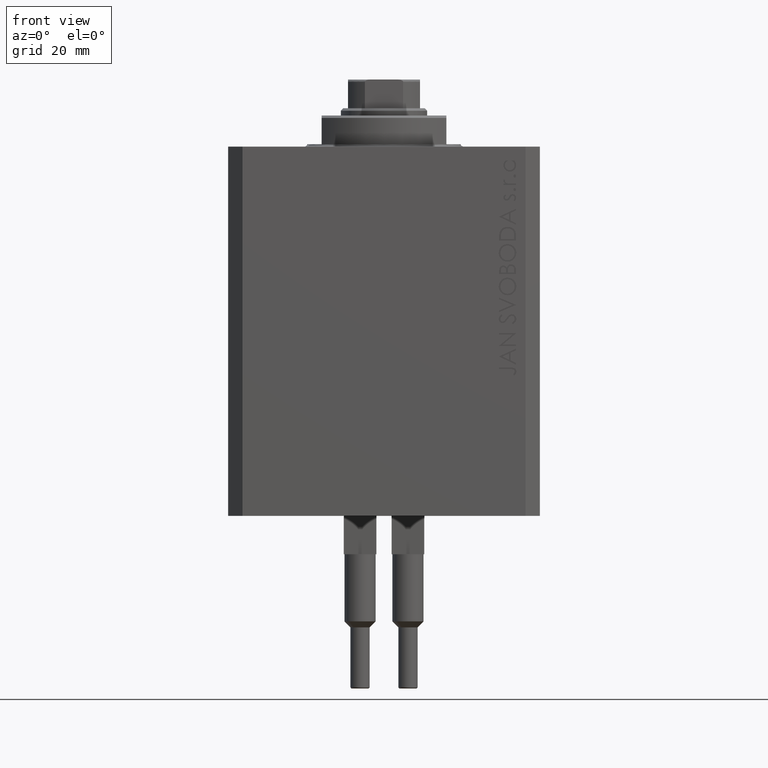
[diagram: clean part render]
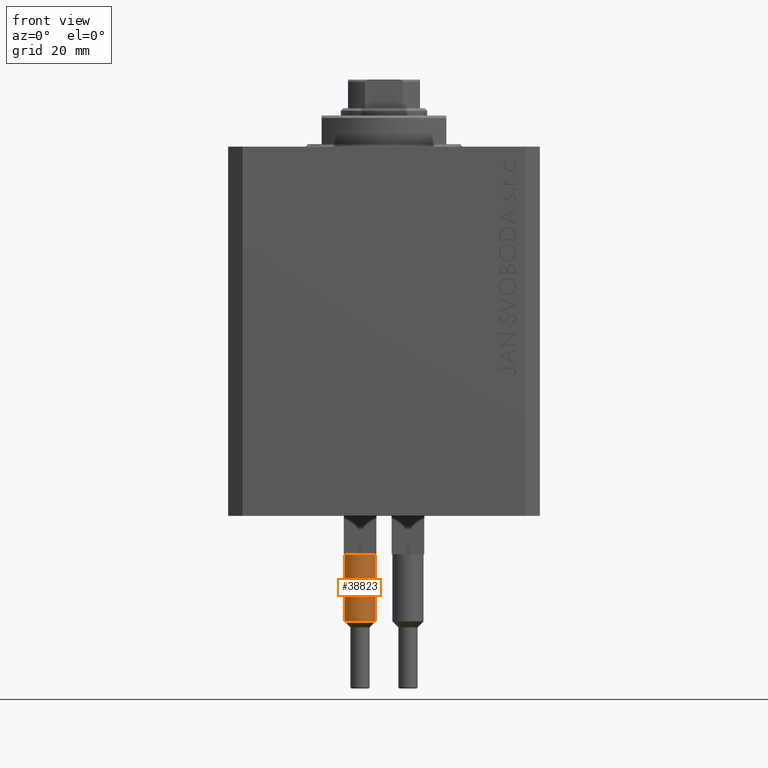
[diagram: same view with one face highlighted and labeled with its STEP entity id]
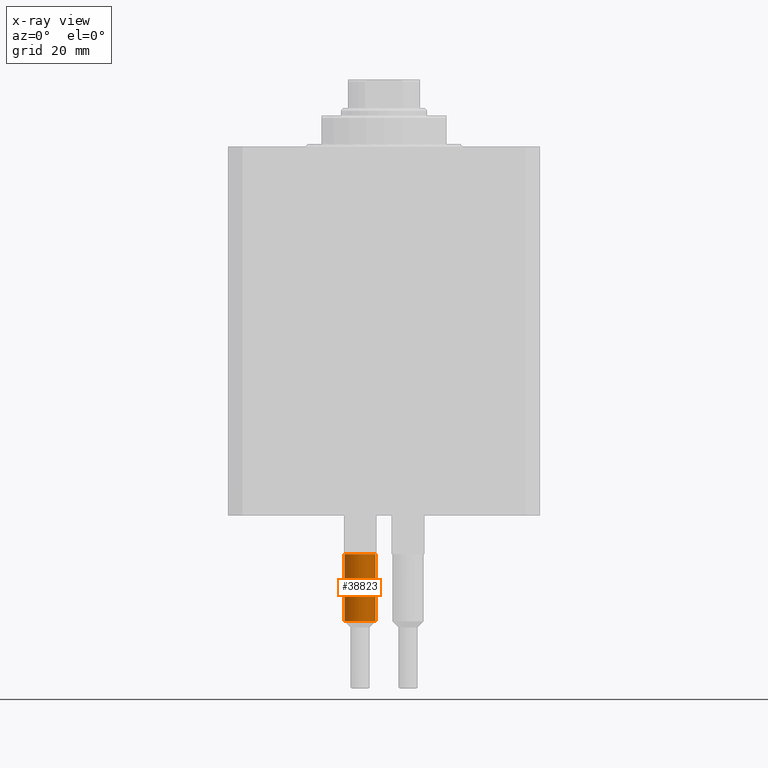
[diagram: x-ray of the same camera — body ghosted, the highlighted face saturated]
A machine part, front view. The second image highlights one B-rep face of the part: STEP entity #38823.
The next image is the same camera in x-ray: the body ghosted, the highlighted face saturated — about 0% of this face is hidden behind the body in this view.
In plain terms, the highlighted cylindrical surface (edge-blend (fillet) strip) has radius 3.25 mm, axis along (-0, -0, 1).
Its self-contained STEP definition (entity closure, byte-faithful):
#175 = VECTOR ( 'NONE', #25890, 1000.000000000000000 ) ;
#653 = ORIENTED_EDGE ( 'NONE', *, *, #3197, .T. ) ;
#1114 = EDGE_CURVE ( 'NONE', #43494, #15121, #32935, .T. ) ;
#1390 = EDGE_CURVE ( 'NONE', #2675, #15121, #20384, .T. ) ;
#1750 = CIRCLE ( 'NONE', #27332, 3.250000000000000444 ) ;
#2675 = VERTEX_POINT ( 'NONE', #28651 ) ;
#3038 = ORIENTED_EDGE ( 'NONE', *, *, #1114, .F. ) ;
#3197 = EDGE_CURVE ( 'NONE', #46795, #3873, #5646, .T. ) ;
#3873 = VERTEX_POINT ( 'NONE', #39500 ) ;
#4757 = CARTESIAN_POINT ( 'NONE',  ( 0.000000000000000000, 0.000000000000000000, 40.00000000000000000 ) ) ;
#4895 = EDGE_CURVE ( 'NONE', #16817, #2675, #1750, .T. ) ;
#5646 = LINE ( 'NONE', #45044, #39696 ) ;
#7980 = DIRECTION ( 'NONE',  ( -0.000000000000000000, -0.000000000000000000, -1.000000000000000000 ) ) ;
#9593 = ORIENTED_EDGE ( 'NONE', *, *, #4895, .T. ) ;
#11806 = DIRECTION ( 'NONE',  ( 0.000000000000000000, 0.000000000000000000, -1.000000000000000000 ) ) ;
#12446 = CARTESIAN_POINT ( 'NONE',  ( -3.250000000000000444, 0.000000000000000000, 40.00000000000000000 ) ) ;
#12704 = AXIS2_PLACEMENT_3D ( 'NONE', #45076, #11806, #40708 ) ;
#14275 = CARTESIAN_POINT ( 'NONE',  ( 2.883140648667699146, 1.500000000000000000, 40.00000000000000000 ) ) ;
#14656 = CARTESIAN_POINT ( 'NONE',  ( 0.000000000000000000, 0.000000000000000000, 40.00000000000000000 ) ) ;
#15121 = VERTEX_POINT ( 'NONE', #12446 ) ;
#15285 = CARTESIAN_POINT ( 'NONE',  ( 3.250000000000000444, 3.980102097228898231E-16, 53.99999999999998579 ) ) ;
#16817 = VERTEX_POINT ( 'NONE', #14275 ) ;
#18346 = DIRECTION ( 'NONE',  ( 0.000000000000000000, 0.000000000000000000, 1.000000000000000000 ) ) ;
#19388 = DIRECTION ( 'NONE',  ( -1.000000000000000000, 0.000000000000000000, 0.000000000000000000 ) ) ;
#19418 = ORIENTED_EDGE ( 'NONE', *, *, #44852, .T. ) ;
#20384 = CIRCLE ( 'NONE', #42046, 3.250000000000000444 ) ;
#21416 = EDGE_LOOP ( 'NONE', ( #19418, #653, #43921, #9593, #30334, #3038 ) ) ;
#22322 = CARTESIAN_POINT ( 'NONE',  ( 0.000000000000000000, 0.000000000000000000, 56.00000000000000000 ) ) ;
#22724 = AXIS2_PLACEMENT_3D ( 'NONE', #26321, #18346, #47942 ) ;
#23045 = CYLINDRICAL_SURFACE ( 'NONE', #31099, 3.250000000000000444 ) ;
#25890 = DIRECTION ( 'NONE',  ( -0.000000000000000000, -0.000000000000000000, -1.000000000000000000 ) ) ;
#26294 = DIRECTION ( 'NONE',  ( 0.000000000000000000, 0.000000000000000000, 1.000000000000000000 ) ) ;
#26321 = CARTESIAN_POINT ( 'NONE',  ( 0.000000000000000000, 0.000000000000000000, 40.00000000000000000 ) ) ;
#26861 = DIRECTION ( 'NONE',  ( 0.000000000000000000, 0.000000000000000000, 1.000000000000000000 ) ) ;
#27332 = AXIS2_PLACEMENT_3D ( 'NONE', #4757, #26861, #34132 ) ;
#28651 = CARTESIAN_POINT ( 'NONE',  ( -2.883140648667699146, 1.500000000000000000, 40.00000000000000000 ) ) ;
#29718 = CIRCLE ( 'NONE', #22724, 3.250000000000000444 ) ;
#30334 = ORIENTED_EDGE ( 'NONE', *, *, #1390, .T. ) ;
#31099 = AXIS2_PLACEMENT_3D ( 'NONE', #22322, #7980, #19388 ) ;
#32935 = LINE ( 'NONE', #40679, #175 ) ;
#33875 = DIRECTION ( 'NONE',  ( -0.000000000000000000, -0.000000000000000000, -1.000000000000000000 ) ) ;
#34132 = DIRECTION ( 'NONE',  ( 1.000000000000000000, 0.000000000000000000, 0.000000000000000000 ) ) ;
#34411 = CIRCLE ( 'NONE', #12704, 3.250000000000000444 ) ;
#37210 = DIRECTION ( 'NONE',  ( 1.000000000000000000, 0.000000000000000000, 0.000000000000000000 ) ) ;
#38823 = ADVANCED_FACE ( 'NONE', ( #45122 ), #23045, .T. ) ;
#39500 = CARTESIAN_POINT ( 'NONE',  ( 3.250000000000000444, 3.980102097228898231E-16, 40.00000000000000000 ) ) ;
#39696 = VECTOR ( 'NONE', #33875, 1000.000000000000000 ) ;
#40679 = CARTESIAN_POINT ( 'NONE',  ( -3.250000000000000444, 0.000000000000000000, 56.00000000000000000 ) ) ;
#40708 = DIRECTION ( 'NONE',  ( 1.000000000000000000, 0.000000000000000000, 0.000000000000000000 ) ) ;
#42046 = AXIS2_PLACEMENT_3D ( 'NONE', #14656, #26294, #37210 ) ;
#43494 = VERTEX_POINT ( 'NONE', #47875 ) ;
#43921 = ORIENTED_EDGE ( 'NONE', *, *, #44198, .T. ) ;
#44198 = EDGE_CURVE ( 'NONE', #3873, #16817, #29718, .T. ) ;
#44852 = EDGE_CURVE ( 'NONE', #43494, #46795, #34411, .T. ) ;
#45044 = CARTESIAN_POINT ( 'NONE',  ( 3.250000000000000444, 3.980102097228898231E-16, 56.00000000000000000 ) ) ;
#45076 = CARTESIAN_POINT ( 'NONE',  ( 0.000000000000000000, 0.000000000000000000, 53.99999999999998579 ) ) ;
#45122 = FACE_OUTER_BOUND ( 'NONE', #21416, .T. ) ;
#46795 = VERTEX_POINT ( 'NONE', #15285 ) ;
#47875 = CARTESIAN_POINT ( 'NONE',  ( -3.250000000000000444, 0.000000000000000000, 53.99999999999998579 ) ) ;
#47942 = DIRECTION ( 'NONE',  ( 1.000000000000000000, 0.000000000000000000, 0.000000000000000000 ) ) ;